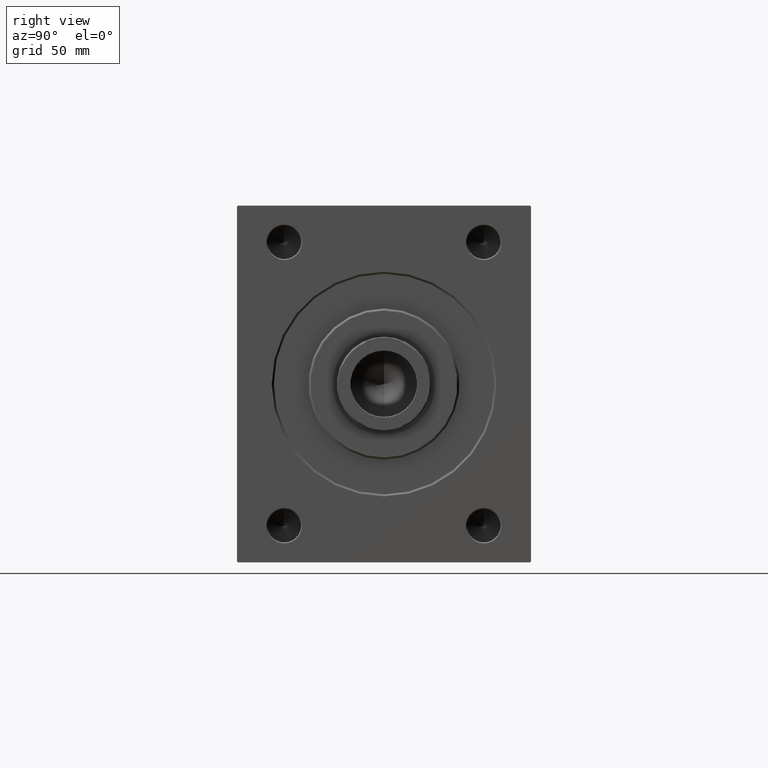
[diagram: clean part render]
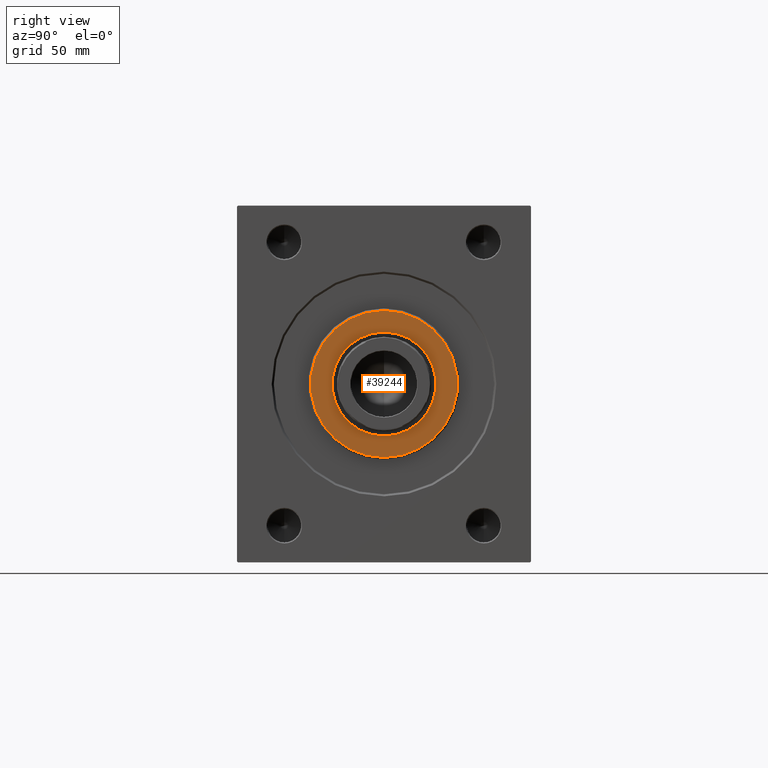
[diagram: same view with one face highlighted and labeled with its STEP entity id]
A machine part, right view. The second image highlights one B-rep face of the part: STEP entity #39244.
In plain terms, the highlighted planar face has unit normal (1, 0, 0).
Its self-contained STEP definition (entity closure, byte-faithful):
#2783 = CARTESIAN_POINT ( 'NONE',  ( 3.000000000000000000, 0.000000000000000000, -24.75000000000000355 ) ) ;
#3129 = PLANE ( 'NONE',  #26101 ) ;
#4989 = AXIS2_PLACEMENT_3D ( 'NONE', #30072, #27089, #36916 ) ;
#5248 = ORIENTED_EDGE ( 'NONE', *, *, #37686, .T. ) ;
#5763 = CIRCLE ( 'NONE', #39925, 34.99999999999997868 ) ;
#6319 = EDGE_LOOP ( 'NONE', ( #16354, #5248 ) ) ;
#7300 = DIRECTION ( 'NONE',  ( 0.000000000000000000, 0.000000000000000000, -1.000000000000000000 ) ) ;
#9167 = CARTESIAN_POINT ( 'NONE',  ( 3.000000000000000000, 0.000000000000000000, 0.000000000000000000 ) ) ;
#12521 = EDGE_CURVE ( 'NONE', #19145, #34519, #15455, .T. ) ;
#13122 = FACE_BOUND ( 'NONE', #18980, .T. ) ;
#15151 = CIRCLE ( 'NONE', #4989, 24.75000000000000355 ) ;
#15455 = CIRCLE ( 'NONE', #30714, 24.75000000000000355 ) ;
#16297 = FACE_OUTER_BOUND ( 'NONE', #6319, .T. ) ;
#16354 = ORIENTED_EDGE ( 'NONE', *, *, #39809, .T. ) ;
#18073 = ORIENTED_EDGE ( 'NONE', *, *, #12521, .F. ) ;
#18769 = VERTEX_POINT ( 'NONE', #43447 ) ;
#18980 = EDGE_LOOP ( 'NONE', ( #26099, #18073 ) ) ;
#19145 = VERTEX_POINT ( 'NONE', #41076 ) ;
#19720 = DIRECTION ( 'NONE',  ( 1.000000000000000000, -0.000000000000000000, 0.000000000000000000 ) ) ;
#23350 = CARTESIAN_POINT ( 'NONE',  ( 3.000000000000000000, 0.000000000000000000, 34.99999999999997868 ) ) ;
#25336 = DIRECTION ( 'NONE',  ( 0.000000000000000000, 0.000000000000000000, -1.000000000000000000 ) ) ;
#26099 = ORIENTED_EDGE ( 'NONE', *, *, #39945, .F. ) ;
#26101 = AXIS2_PLACEMENT_3D ( 'NONE', #27202, #19720, #30851 ) ;
#27089 = DIRECTION ( 'NONE',  ( 1.000000000000000000, 0.000000000000000000, 0.000000000000000000 ) ) ;
#27202 = CARTESIAN_POINT ( 'NONE',  ( 3.000000000000000000, 0.000000000000000000, 0.000000000000000000 ) ) ;
#30072 = CARTESIAN_POINT ( 'NONE',  ( 3.000000000000000000, 0.000000000000000000, 0.000000000000000000 ) ) ;
#30714 = AXIS2_PLACEMENT_3D ( 'NONE', #31725, #42664, #25336 ) ;
#30740 = DIRECTION ( 'NONE',  ( 0.000000000000000000, 0.000000000000000000, -1.000000000000000000 ) ) ;
#30851 = DIRECTION ( 'NONE',  ( 0.000000000000000000, 0.000000000000000000, -1.000000000000000000 ) ) ;
#31386 = DIRECTION ( 'NONE',  ( 1.000000000000000000, -0.000000000000000000, 0.000000000000000000 ) ) ;
#31725 = CARTESIAN_POINT ( 'NONE',  ( 3.000000000000000000, 0.000000000000000000, 0.000000000000000000 ) ) ;
#33943 = DIRECTION ( 'NONE',  ( 1.000000000000000000, -0.000000000000000000, 0.000000000000000000 ) ) ;
#34519 = VERTEX_POINT ( 'NONE', #2783 ) ;
#36916 = DIRECTION ( 'NONE',  ( 0.000000000000000000, 0.000000000000000000, -1.000000000000000000 ) ) ;
#36961 = AXIS2_PLACEMENT_3D ( 'NONE', #9167, #33943, #30740 ) ;
#37686 = EDGE_CURVE ( 'NONE', #18769, #44119, #5763, .T. ) ;
#38008 = CARTESIAN_POINT ( 'NONE',  ( 3.000000000000000000, 0.000000000000000000, 0.000000000000000000 ) ) ;
#39102 = CIRCLE ( 'NONE', #36961, 34.99999999999997868 ) ;
#39244 = ADVANCED_FACE ( 'NONE', ( #16297, #13122 ), #3129, .T. ) ;
#39809 = EDGE_CURVE ( 'NONE', #44119, #18769, #39102, .T. ) ;
#39925 = AXIS2_PLACEMENT_3D ( 'NONE', #38008, #31386, #7300 ) ;
#39945 = EDGE_CURVE ( 'NONE', #34519, #19145, #15151, .T. ) ;
#41076 = CARTESIAN_POINT ( 'NONE',  ( 3.000000000000000000, 3.031000827889699650E-15, 24.75000000000000355 ) ) ;
#42664 = DIRECTION ( 'NONE',  ( 1.000000000000000000, 0.000000000000000000, 0.000000000000000000 ) ) ;
#43447 = CARTESIAN_POINT ( 'NONE',  ( 3.000000000000000000, 4.347496136973101704E-15, -34.99999999999997868 ) ) ;
#44119 = VERTEX_POINT ( 'NONE', #23350 ) ;